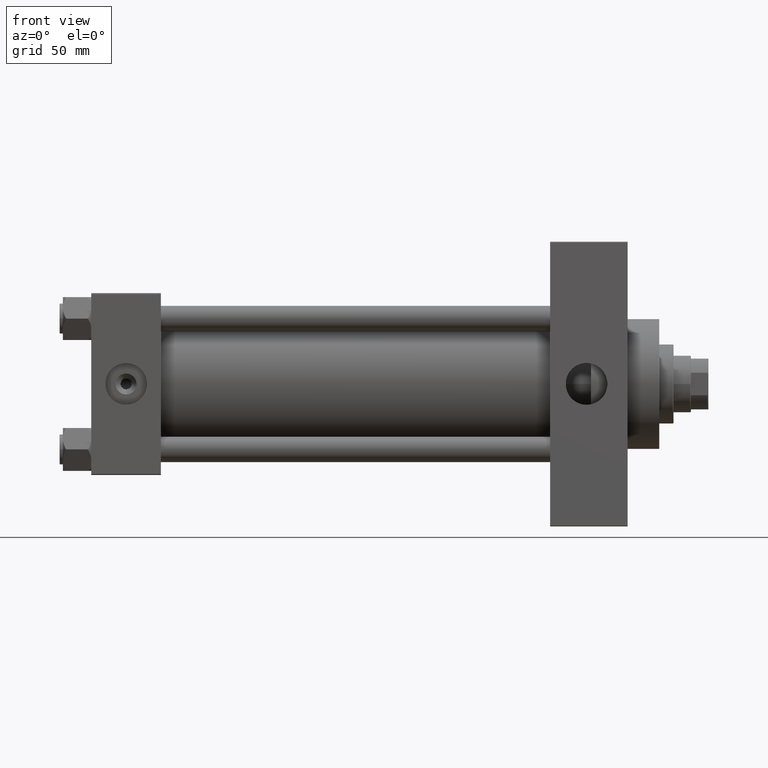
[diagram: clean part render]
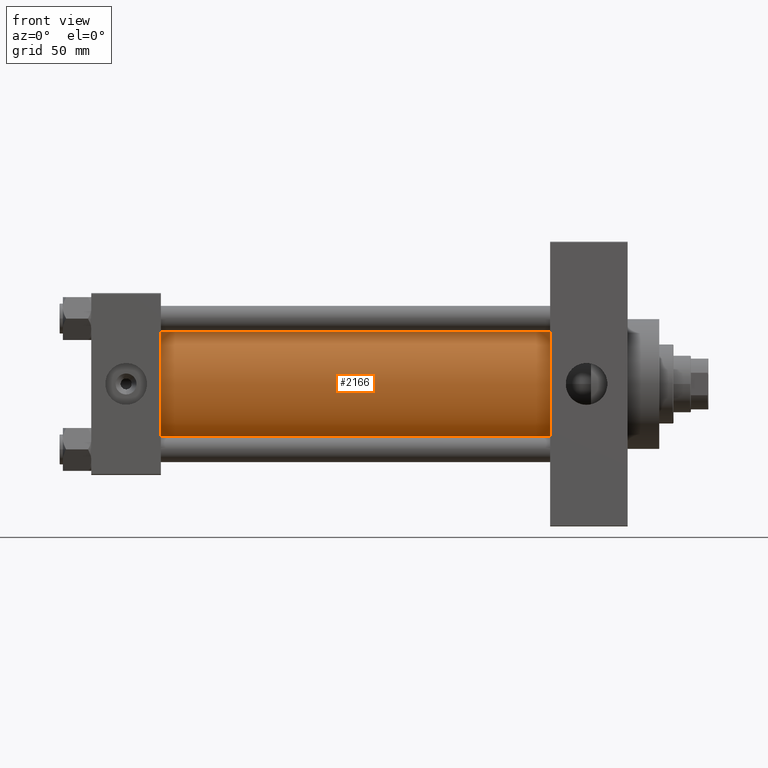
[diagram: same view with one face highlighted and labeled with its STEP entity id]
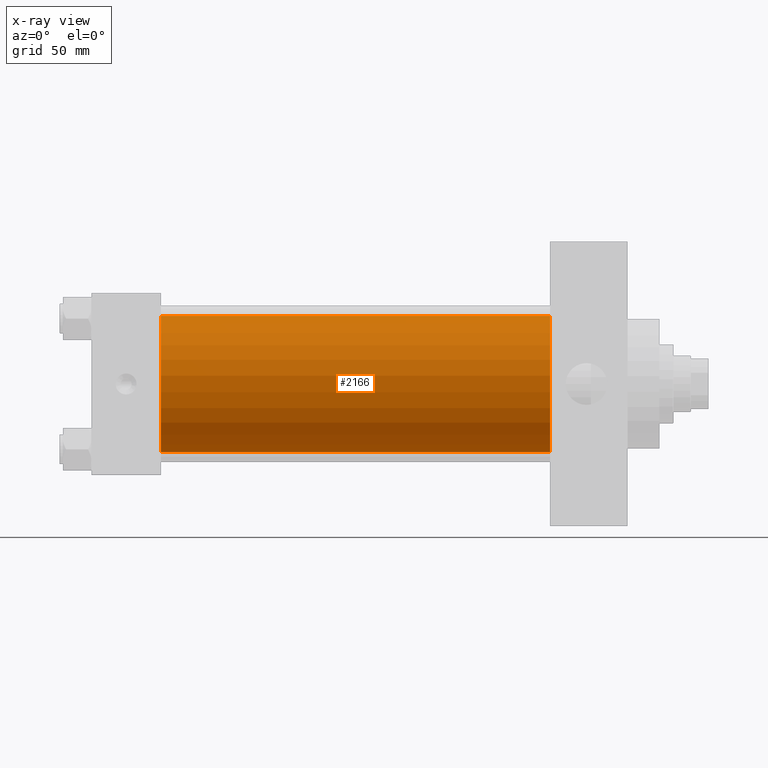
[diagram: x-ray of the same camera — body ghosted, the highlighted face saturated]
A machine part, front view. The second image highlights one B-rep face of the part: STEP entity #2166.
The next image is the same camera in x-ray: the body ghosted, the highlighted face saturated — about 0% of this face is hidden behind the body in this view.
In plain terms, the highlighted cylindrical surface (partial cylindrical patch) has radius 43 mm, axis along (-1, -0, -0).
Its self-contained STEP definition (entity closure, byte-faithful):
#1599 = VECTOR ( 'NONE', #15490, 1000.000000000000000 ) ;
#2166 = ADVANCED_FACE ( 'NONE', ( #36577 ), #39712, .T. ) ;
#3769 = DIRECTION ( 'NONE',  ( -1.000000000000000000, -0.000000000000000000, -0.000000000000000000 ) ) ;
#4395 = ORIENTED_EDGE ( 'NONE', *, *, #36993, .F. ) ;
#7097 = CARTESIAN_POINT ( 'NONE',  ( 290.0000000000000000, -2.602085213965210642E-15, 0.000000000000000000 ) ) ;
#7162 = CARTESIAN_POINT ( 'NONE',  ( 290.0000000000000000, 2.663896022368408223E-15, -43.00000000000000000 ) ) ;
#14295 = VECTOR ( 'NONE', #3769, 1000.000000000000000 ) ;
#14424 = CIRCLE ( 'NONE', #24422, 43.00000000000000000 ) ;
#15490 = DIRECTION ( 'NONE',  ( -1.000000000000000000, -0.000000000000000000, -0.000000000000000000 ) ) ;
#15961 = CARTESIAN_POINT ( 'NONE',  ( 43.99999999999998579, 2.663896022368408223E-15, -43.00000000000000000 ) ) ;
#17565 = CARTESIAN_POINT ( 'NONE',  ( 290.0000000000000000, -2.602085213965210642E-15, 0.000000000000000000 ) ) ;
#17876 = CIRCLE ( 'NONE', #44784, 43.00000000000000000 ) ;
#18287 = DIRECTION ( 'NONE',  ( 0.000000000000000000, 0.000000000000000000, 1.000000000000000000 ) ) ;
#19105 = LINE ( 'NONE', #33801, #1599 ) ;
#19666 = VERTEX_POINT ( 'NONE', #28852 ) ;
#21078 = DIRECTION ( 'NONE',  ( 1.000000000000000000, 0.000000000000000000, 0.000000000000000000 ) ) ;
#21643 = DIRECTION ( 'NONE',  ( -1.000000000000000000, -0.000000000000000000, -0.000000000000000000 ) ) ;
#21788 = DIRECTION ( 'NONE',  ( 0.000000000000000000, 0.000000000000000000, -1.000000000000000000 ) ) ;
#22158 = DIRECTION ( 'NONE',  ( 0.000000000000000000, 0.000000000000000000, 1.000000000000000000 ) ) ;
#22522 = EDGE_CURVE ( 'NONE', #19666, #25269, #19105, .T. ) ;
#24346 = DIRECTION ( 'NONE',  ( 1.000000000000000000, -0.000000000000000000, 0.000000000000000000 ) ) ;
#24422 = AXIS2_PLACEMENT_3D ( 'NONE', #7097, #21078, #21788 ) ;
#25084 = VERTEX_POINT ( 'NONE', #41991 ) ;
#25269 = VERTEX_POINT ( 'NONE', #27771 ) ;
#27156 = VERTEX_POINT ( 'NONE', #15961 ) ;
#27771 = CARTESIAN_POINT ( 'NONE',  ( 43.99999999999998579, -2.602085213965210642E-15, 43.00000000000000000 ) ) ;
#28005 = EDGE_CURVE ( 'NONE', #25269, #27156, #17876, .T. ) ;
#28852 = CARTESIAN_POINT ( 'NONE',  ( 290.0000000000000000, -2.602085213965210642E-15, 43.00000000000000000 ) ) ;
#33659 = ORIENTED_EDGE ( 'NONE', *, *, #44694, .F. ) ;
#33801 = CARTESIAN_POINT ( 'NONE',  ( 290.0000000000000000, -2.602085213965210642E-15, 43.00000000000000000 ) ) ;
#35648 = ORIENTED_EDGE ( 'NONE', *, *, #22522, .T. ) ;
#36577 = FACE_OUTER_BOUND ( 'NONE', #47313, .T. ) ;
#36919 = ORIENTED_EDGE ( 'NONE', *, *, #28005, .T. ) ;
#36993 = EDGE_CURVE ( 'NONE', #25084, #27156, #43778, .T. ) ;
#39596 = AXIS2_PLACEMENT_3D ( 'NONE', #17565, #21643, #18287 ) ;
#39712 = CYLINDRICAL_SURFACE ( 'NONE', #39596, 43.00000000000000000 ) ;
#41991 = CARTESIAN_POINT ( 'NONE',  ( 290.0000000000000000, 2.663896022368408223E-15, -43.00000000000000000 ) ) ;
#43778 = LINE ( 'NONE', #7162, #14295 ) ;
#43838 = CARTESIAN_POINT ( 'NONE',  ( 43.99999999999998579, -2.602085213965210642E-15, 0.000000000000000000 ) ) ;
#44694 = EDGE_CURVE ( 'NONE', #19666, #25084, #14424, .T. ) ;
#44784 = AXIS2_PLACEMENT_3D ( 'NONE', #43838, #24346, #22158 ) ;
#47313 = EDGE_LOOP ( 'NONE', ( #4395, #33659, #35648, #36919 ) ) ;